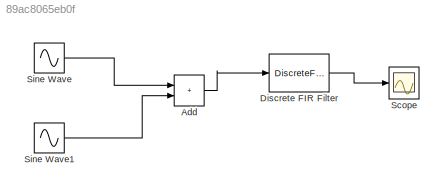
MODEL slx_89ac8065eb0f
KIND model
CONFIG AbsTol = auto
CONFIG EnableMultiTasking = off
CONFIG FixedStep = auto
CONFIG MaxStep = auto
CONFIG MinStep = auto
CONFIG RelTol = 1e-3
CONFIG SampleTimeConstraint = Unconstrained
CONFIG SolverName = VariableStepAuto
CONFIG StartTime = 0.0
CONFIG StopTime = 10.0
BLOCK [Sum] Add
  IconShape = rectangular
BLOCK [DiscreteFir] Discrete FIR Filter
  Coefficients = b
  InputPortMap = u0
  OutputPortMap = o0
BLOCK [Scope] Scope
  Floating = off
  NumInputPorts = 1
  ScopeSpecificationString = Simulink.scopes.TimeScopeBlockCfg('CurrentConfiguration', extmgr.ConfigurationSet(extmgr.Configuration('Core','General UI',true),extmgr.Configuration('Core','Source UI',true),extmgr.Configuration('Sources','WiredSimulink',true),extmgr.Configuration('Visuals','Time Domain',true,'SerializedDisplays',{struct('MinYLimReal','-1.70753','MaxYLimReal','1.70753','YLabelReal','','MinYLimMag','0.00000','MaxY...<+1463ch>
BLOCK [Sin] Sine Wave
  Amplitude = 0.5
  Phase = 2*pi*120
  SampleTime = 0
BLOCK [Sin] Sine Wave1
  Frequency = 2*pi*50
  SampleTime = 0
LINE Add:1 -> Discrete FIR Filter:1
LINE Discrete FIR Filter:1 -> Scope:1
LINE Sine Wave1:1 -> Add:2
LINE Sine Wave:1 -> Add:1
